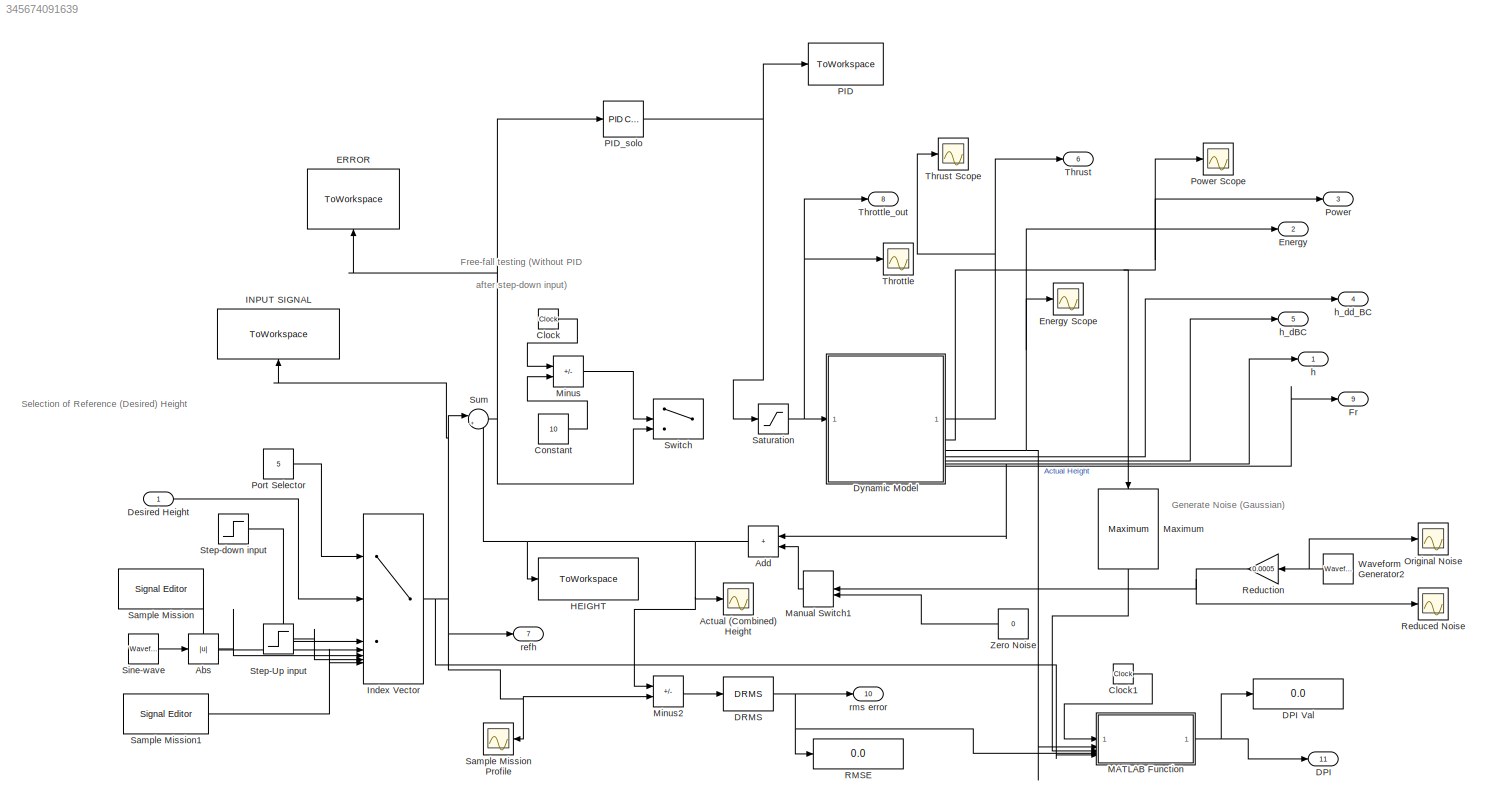
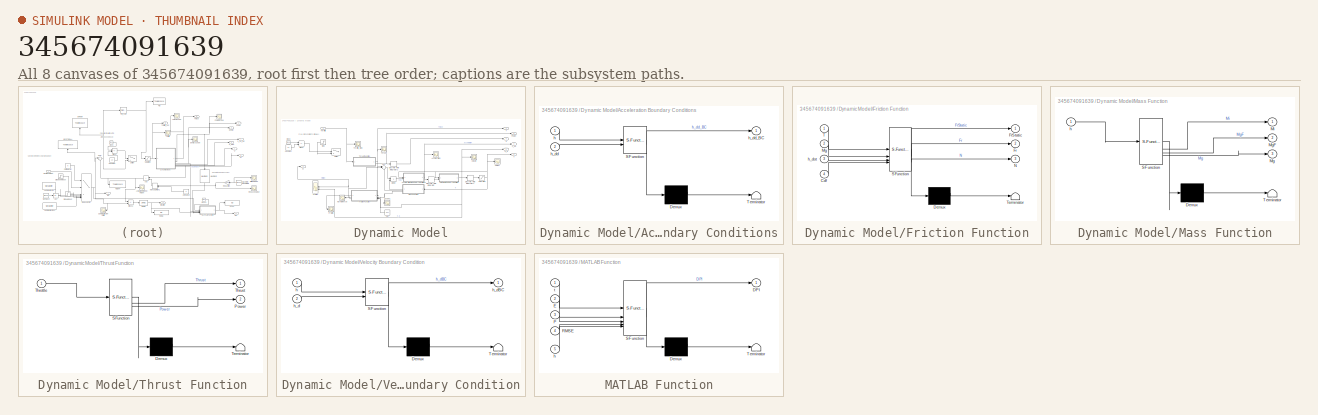
[diagram: thumbnail index - all 8 canvases of the model, root first then tree order]
MODEL slx_345674091639
KIND model
CONFIG AbsTol = auto
CONFIG EnableMultiTasking = off
CONFIG FixedStep = auto
CONFIG MaxStep = auto
CONFIG MinStep = auto
CONFIG RelTol = 1e-3
CONFIG SampleTimeConstraint = Unconstrained
CONFIG SolverName = FixedStepAuto
CONFIG StartTime = 0.0
CONFIG StopTime = 100
BLOCK [Abs] Abs
  SaturateOnIntegerOverflow = off
BLOCK [Scope] Actual (Combined) Height
  Floating = off
  NumInputPorts = 1
  ScopeSpecificationString = Simulink.scopes.TimeScopeBlockCfg('CurrentConfiguration', extmgr.ConfigurationSet(extmgr.Configuration('Core','General UI',true),extmgr.Configuration('Core','Source UI',true),extmgr.Configuration('Sources','WiredSimulink',true,'DataLoggingVariableName','ScopeData2'),extmgr.Configuration('Visuals','Time Domain',true,'SerializedDisplays',{struct('MinYLimReal','-0.13595','MaxYLimReal','1.17706','YLab...<+1451ch>
BLOCK [Sum] Add
  IconShape = rectangular
BLOCK [Clock] Clock
  DisplayTime = on
BLOCK [Clock] Clock1
  DisplayTime = on
BLOCK [Constant] Constant
  Value = 10
BLOCK [Outport] DPI
  Port = 11
BLOCK [Display] DPI Val
  Decimation = 1
BLOCK [Reference] DRMS  REF=sdolib/RMS Blocks/DRMS
  SourceBlock = sdolib/RMS Blocks/DRMS
  SourceType = Discrete RMS Value Block
BLOCK [Inport] Desired Height
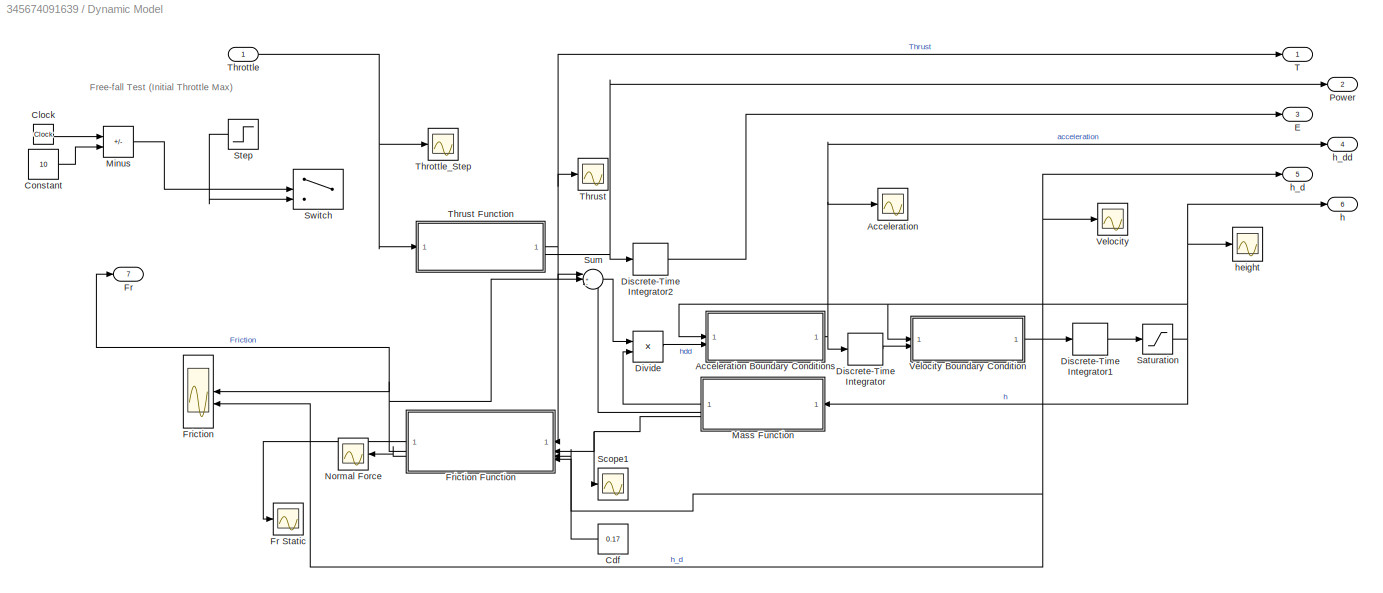
BLOCK [SubSystem] Dynamic Model
BLOCK [Scope] Dynamic Model/Acceleration
  Floating = off
  NumInputPorts = 1
  ScopeSpecificationString = Simulink.scopes.TimeScopeBlockCfg('CurrentConfiguration', extmgr.ConfigurationSet(extmgr.Configuration('Core','General UI',true),extmgr.Configuration('Core','Source UI',true),extmgr.Configuration('Sources','WiredSimulink',true,'DataLoggingVariableName','ScopeData4'),extmgr.Configuration('Visuals','Time Domain',true,'SerializedDisplays',{struct('MinYLimReal','-15.77641','MaxYLimReal','27.55756','YL...<+1495ch>
BLOCK [SubSystem] Dynamic Model/Acceleration Boundary Conditions
  ErrorFcn = Stateflow.Translate.translate
  PermitHierarchicalResolution = ExplicitOnly
  SFBlockType = MATLAB Function
  TreatAsAtomicUnit = on
BLOCK [Demux] Dynamic Model/Acceleration Boundary Conditions/ Demux 
  Outputs = 1
BLOCK [S-Function] Dynamic Model/Acceleration Boundary Conditions/ SFunction 
  EnableBusSupport = on
  FunctionName = sf_sfun
  PortCounts = [2 2]
  SFcnIsStateOwnerBlock = off
  SFunctionDeploymentMode = off
  Tag = Stateflow S-Function 4
BLOCK [Terminator] Dynamic Model/Acceleration Boundary Conditions/ Terminator 
BLOCK [Inport] Dynamic Model/Acceleration Boundary Conditions/h
BLOCK [Inport] Dynamic Model/Acceleration Boundary Conditions/h_dd
  Port = 2
BLOCK [Outport] Dynamic Model/Acceleration Boundary Conditions/h_dd_BC
BLOCK [Constant] Dynamic Model/Cdf
  Value = 0.17
BLOCK [Clock] Dynamic Model/Clock
  DisplayTime = on
BLOCK [Constant] Dynamic Model/Constant
  Value = 10
BLOCK [DiscreteIntegrator] Dynamic Model/Discrete-Time Integrator
  ICPrevOutput = DiscIntNeverNeededParam
  ICPrevScaledInput = DiscIntNeverNeededParam
  InitialConditionSetting = Auto
  SampleTime = -1
BLOCK [DiscreteIntegrator] Dynamic Model/Discrete-Time Integrator1
  ICPrevOutput = DiscIntNeverNeededParam
  ICPrevScaledInput = DiscIntNeverNeededParam
  InitialConditionSetting = Auto
  SampleTime = -1
BLOCK [DiscreteIntegrator] Dynamic Model/Discrete-Time Integrator2
  ICPrevOutput = DiscIntNeverNeededParam
  ICPrevScaledInput = DiscIntNeverNeededParam
  InitialConditionSetting = Auto
  SampleTime = -1
BLOCK [Product] Dynamic Model/Divide
  Inputs = */
BLOCK [Outport] Dynamic Model/E
  Port = 3
BLOCK [Outport] Dynamic Model/Fr
  Port = 7
BLOCK [Scope] Dynamic Model/Fr Static
  Floating = off
  NumInputPorts = 1
  ScopeSpecificationString = Simulink.scopes.TimeScopeBlockCfg('CurrentConfiguration', extmgr.ConfigurationSet(extmgr.Configuration('Core','General UI',true),extmgr.Configuration('Core','Source UI',true),extmgr.Configuration('Sources','WiredSimulink',true,'DataLoggingVariableName','ScopeData1'),extmgr.Configuration('Visuals','Time Domain',true,'SerializedDisplays',{struct('MinYLimReal','1.5506','MaxYLimReal','3.5506','YLabelR...<+1464ch>
BLOCK [Scope] Dynamic Model/Friction
  Floating = off
  NumInputPorts = 2
  ScopeSpecificationString = Simulink.scopes.TimeScopeBlockCfg('CurrentConfiguration', extmgr.ConfigurationSet(extmgr.Configuration('Core','General UI',true),extmgr.Configuration('Core','Source UI',true),extmgr.Configuration('Sources','WiredSimulink',true,'DataLoggingVariableName','ScopeData5'),extmgr.Configuration('Visuals','Time Domain',true,'SerializedDisplays',{struct('MinYLimReal','-41.6766','MaxYLimReal','41.74048','YLa...<+1493ch>
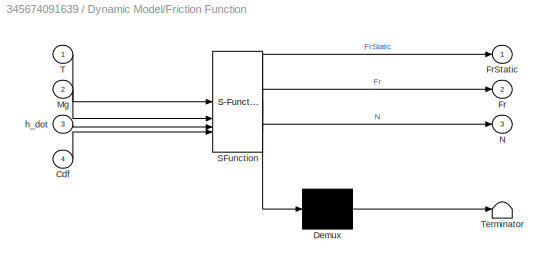
BLOCK [SubSystem] Dynamic Model/Friction Function
  ErrorFcn = Stateflow.Translate.translate
  PermitHierarchicalResolution = ExplicitOnly
  SFBlockType = MATLAB Function
  TreatAsAtomicUnit = on
BLOCK [Demux] Dynamic Model/Friction Function/ Demux 
  Outputs = 1
BLOCK [S-Function] Dynamic Model/Friction Function/ SFunction 
  EnableBusSupport = on
  FunctionName = sf_sfun
  PortCounts = [4 4]
  SFcnIsStateOwnerBlock = off
  SFunctionDeploymentMode = off
  Tag = Stateflow S-Function 3
BLOCK [Terminator] Dynamic Model/Friction Function/ Terminator 
BLOCK [Inport] Dynamic Model/Friction Function/Cdf
  Port = 4
BLOCK [Outport] Dynamic Model/Friction Function/Fr
  Port = 2
BLOCK [Outport] Dynamic Model/Friction Function/FrStatic
BLOCK [Inport] Dynamic Model/Friction Function/Mg
  Port = 2
BLOCK [Outport] Dynamic Model/Friction Function/N
  Port = 3
BLOCK [Inport] Dynamic Model/Friction Function/T
BLOCK [Inport] Dynamic Model/Friction Function/h_dot
  Port = 3
BLOCK [SubSystem] Dynamic Model/Mass Function
  ErrorFcn = Stateflow.Translate.translate
  PermitHierarchicalResolution = ExplicitOnly
  SFBlockType = MATLAB Function
  TreatAsAtomicUnit = on
BLOCK [Demux] Dynamic Model/Mass Function/ Demux 
  Outputs = 1
BLOCK [S-Function] Dynamic Model/Mass Function/ SFunction 
  EnableBusSupport = on
  FunctionName = sf_sfun
  PortCounts = [1 4]
  SFcnIsStateOwnerBlock = off
  SFunctionDeploymentMode = off
  Tag = Stateflow S-Function 1
BLOCK [Terminator] Dynamic Model/Mass Function/ Terminator 
BLOCK [Outport] Dynamic Model/Mass Function/Mg
  Port = 3
BLOCK [Outport] Dynamic Model/Mass Function/MgF
  Port = 2
BLOCK [Outport] Dynamic Model/Mass Function/Mi
BLOCK [Inport] Dynamic Model/Mass Function/h
BLOCK [Sum] Dynamic Model/Minus
  IconShape = rectangular
  Inputs = -+
BLOCK [Scope] Dynamic Model/Normal Force
  Floating = off
  NumInputPorts = 1
  ScopeSpecificationString = Simulink.scopes.TimeScopeBlockCfg('CurrentConfiguration', extmgr.ConfigurationSet(extmgr.Configuration('Core','General UI',true),extmgr.Configuration('Core','Source UI',true),extmgr.Configuration('Sources','WiredSimulink',true,'DataLoggingVariableName','ScopeData6'),extmgr.Configuration('Visuals','Time Domain',true,'SerializedDisplays',{struct('MinYLimReal','-17.04515','MaxYLimReal','220.18654','Y...<+1477ch>
BLOCK [Outport] Dynamic Model/Power
  Port = 2
BLOCK [Saturate] Dynamic Model/Saturation
  LowerLimit = 0
  UpperLimit = 1.44
BLOCK [Scope] Dynamic Model/Scope1
  Floating = off
  NumInputPorts = 1
  ScopeSpecificationString = Simulink.scopes.TimeScopeBlockCfg('CurrentConfiguration', extmgr.ConfigurationSet(extmgr.Configuration('Core','General UI',true),extmgr.Configuration('Core','Source UI',true),extmgr.Configuration('Sources','WiredSimulink',true,'DataLoggingVariableName','ScopeData5'),extmgr.Configuration('Visuals','Time Domain',true,'SerializedDisplays',{struct('MinYLimReal','1.19491','MaxYLimReal','1.38579','YLabe...<+1462ch>
BLOCK [Step] Dynamic Model/Step
  After = 0
  Before = 1
  SampleTime = 0
  Time = 10
BLOCK [Sum] Dynamic Model/Sum
  Inputs = |+--
BLOCK [Switch] Dynamic Model/Switch
  Criteria = u2 ~= 0
  InputSameDT = off
  SaturateOnIntegerOverflow = off
BLOCK [Outport] Dynamic Model/T
BLOCK [Inport] Dynamic Model/Throttle
BLOCK [Scope] Dynamic Model/Throttle_Step
  Floating = off
  NumInputPorts = 1
  ScopeSpecificationString = Simulink.scopes.TimeScopeBlockCfg('CurrentConfiguration', extmgr.ConfigurationSet(extmgr.Configuration('Core','General UI',true),extmgr.Configuration('Core','Source UI',true),extmgr.Configuration('Sources','WiredSimulink',true,'DataLoggingVariableName','ScopeData2'),extmgr.Configuration('Visuals','Time Domain',true,'SerializedDisplays',{struct('MinYLimReal','-11.25','MaxYLimReal','101.25','YLabelR...<+1477ch>
BLOCK [Scope] Dynamic Model/Thrust
  Floating = off
  NumInputPorts = 1
  ScopeSpecificationString = Simulink.scopes.TimeScopeBlockCfg('CurrentConfiguration', extmgr.ConfigurationSet(extmgr.Configuration('Core','General UI',true),extmgr.Configuration('Core','Source UI',true),extmgr.Configuration('Sources','WiredSimulink',true,'DataLoggingVariableName','ScopeData1'),extmgr.Configuration('Visuals','Time Domain',true,'SerializedDisplays',{struct('MinYLimReal','-3.20013','MaxYLimReal','28.80113','YLa...<+1458ch>
BLOCK [SubSystem] Dynamic Model/Thrust Function
  ErrorFcn = Stateflow.Translate.translate
  PermitHierarchicalResolution = ExplicitOnly
  SFBlockType = MATLAB Function
  TreatAsAtomicUnit = on
BLOCK [Demux] Dynamic Model/Thrust Function/ Demux 
  Outputs = 1
BLOCK [S-Function] Dynamic Model/Thrust Function/ SFunction 
  EnableBusSupport = on
  FunctionName = sf_sfun
  PortCounts = [1 3]
  SFcnIsStateOwnerBlock = off
  SFunctionDeploymentMode = off
  Tag = Stateflow S-Function 2
BLOCK [Terminator] Dynamic Model/Thrust Function/ Terminator 
BLOCK [Outport] Dynamic Model/Thrust Function/Power
  Port = 2
BLOCK [Inport] Dynamic Model/Thrust Function/Throttle
BLOCK [Outport] Dynamic Model/Thrust Function/Thrust
BLOCK [Scope] Dynamic Model/Velocity
  Floating = off
  NumInputPorts = 1
  ScopeSpecificationString = Simulink.scopes.TimeScopeBlockCfg('CurrentConfiguration', extmgr.ConfigurationSet(extmgr.Configuration('Core','General UI',true),extmgr.Configuration('Core','Source UI',true),extmgr.Configuration('Sources','WiredSimulink',true,'DataLoggingVariableName','ScopeData4'),extmgr.Configuration('Visuals','Time Domain',true,'SerializedDisplays',{struct('MinYLimReal','-1.26255','MaxYLimReal','1.35675','YLab...<+1451ch>
BLOCK [SubSystem] Dynamic Model/Velocity Boundary Condition
  ErrorFcn = Stateflow.Translate.translate
  PermitHierarchicalResolution = ExplicitOnly
  SFBlockType = MATLAB Function
  TreatAsAtomicUnit = on
BLOCK [Demux] Dynamic Model/Velocity Boundary Condition/ Demux 
  Outputs = 1
BLOCK [S-Function] Dynamic Model/Velocity Boundary Condition/ SFunction 
  EnableBusSupport = on
  FunctionName = sf_sfun
  PortCounts = [2 2]
  SFcnIsStateOwnerBlock = off
  SFunctionDeploymentMode = off
  Tag = Stateflow S-Function 5
BLOCK [Terminator] Dynamic Model/Velocity Boundary Condition/ Terminator 
BLOCK [Inport] Dynamic Model/Velocity Boundary Condition/h
BLOCK [Inport] Dynamic Model/Velocity Boundary Condition/h_d
  Port = 2
BLOCK [Outport] Dynamic Model/Velocity Boundary Condition/h_dBC
BLOCK [Outport] Dynamic Model/h
  Port = 6
BLOCK [Outport] Dynamic Model/h_d
  Port = 5
BLOCK [Outport] Dynamic Model/h_dd
  Port = 4
BLOCK [Scope] Dynamic Model/height
  Floating = off
  NumInputPorts = 1
  ScopeSpecificationString = Simulink.scopes.TimeScopeBlockCfg('CurrentConfiguration', extmgr.ConfigurationSet(extmgr.Configuration('Core','General UI',true),extmgr.Configuration('Core','Source UI',true),extmgr.Configuration('Sources','WiredSimulink',true),extmgr.Configuration('Visuals','Time Domain',true,'SerializedDisplays',{struct('MinYLimReal','-0.10046','MaxYLimReal','0.90418','YLabelReal','','MinYLimMag','0.00000','MaxY...<+1410ch>
BLOCK [ToWorkspace] ERROR 
  FixptAsFi = on
  MaxDataPoints = inf
  NameLocation = right
  SampleTime = 0.05
  Save2DSignal = 2-D array (concatenate along first dimension)
  SaveFormat = Structure With Time
  VariableName = e_out
BLOCK [Outport] Energy
  Port = 2
BLOCK [Scope] Energy Scope
  Floating = off
  NumInputPorts = 1
  ScopeSpecificationString = Simulink.scopes.TimeScopeBlockCfg('CurrentConfiguration', extmgr.ConfigurationSet(extmgr.Configuration('Core','General UI',true),extmgr.Configuration('Core','Source UI',true),extmgr.Configuration('Sources','WiredSimulink',true,'DataLoggingVariableName','ScopeData3'),extmgr.Configuration('Visuals','Time Domain',true,'SerializedDisplays',{struct('MinYLimReal','-4099.52108','MaxYLimReal','36895.68976...<+1499ch>
BLOCK [Outport] Fr
  Port = 9
BLOCK [ToWorkspace] HEIGHT
  FixptAsFi = on
  MaxDataPoints = inf
  SampleTime = 0.05
  Save2DSignal = 2-D array (concatenate along first dimension)
  SaveFormat = Structure With Time
  VariableName = y_out
BLOCK [ToWorkspace] INPUT SIGNAL
  FixptAsFi = on
  MaxDataPoints = inf
  NameLocation = right
  SampleTime = 0.05
  Save2DSignal = 2-D array (concatenate along first dimension)
  SaveFormat = Structure With Time
  VariableName = in_signal
BLOCK [MultiPortSwitch] Index Vector
  DataPortForDefault = Additional data port
  DiagnosticForDefault = None
  InputSameDT = off
  Inputs = 6
  SaturateOnIntegerOverflow = off
BLOCK [SubSystem] MATLAB Function
  ErrorFcn = Stateflow.Translate.translate
  PermitHierarchicalResolution = ExplicitOnly
  SFBlockType = MATLAB Function
  TreatAsAtomicUnit = on
BLOCK [Demux] MATLAB Function/ Demux 
  Outputs = 1
BLOCK [S-Function] MATLAB Function/ SFunction 
  EnableBusSupport = on
  FunctionName = sf_sfun
  PortCounts = [5 2]
  SFcnIsStateOwnerBlock = off
  SFunctionDeploymentMode = off
  Tag = Stateflow S-Function 6
BLOCK [Terminator] MATLAB Function/ Terminator 
BLOCK [Outport] MATLAB Function/DPI
BLOCK [Inport] MATLAB Function/E
  Port = 2
BLOCK [Inport] MATLAB Function/P
  Port = 3
BLOCK [Inport] MATLAB Function/RMSE
  Port = 4
BLOCK [Inport] MATLAB Function/h
  Port = 5
BLOCK [Inport] MATLAB Function/t
BLOCK [ManualSwitch] Manual Switch1
BLOCK [Reference] Maximum  REF=dspstat3/Maximum
  LibrarySourceBlock = dsphdlsupportstat/Maximum
  NameLocation = left
  SourceBlock = dspstat3/Maximum
  SourceType = Maximum
  UserDataPersistent = on
BLOCK [Sum] Minus
  IconShape = rectangular
  Inputs = -+
BLOCK [Sum] Minus2
  IconShape = rectangular
  Inputs = +-
BLOCK [Scope] Original Noise
  Floating = off
  NumInputPorts = 1
  ScopeSpecificationString = Simulink.scopes.TimeScopeBlockCfg('CurrentConfiguration', extmgr.ConfigurationSet(extmgr.Configuration('Core','General UI',true),extmgr.Configuration('Core','Source UI',true),extmgr.Configuration('Sources','WiredSimulink',true,'DataLoggingVariableName','ScopeData2'),extmgr.Configuration('Visuals','Time Domain',true,'SerializedDisplays',{struct('MinYLimReal','-13.46312','MaxYLimReal','12.59666','YL...<+1473ch>
BLOCK [ToWorkspace] PID
  FixptAsFi = on
  MaxDataPoints = inf
  SampleTime = 0.05
  Save2DSignal = 2-D array (concatenate along first dimension)
  SaveFormat = Structure With Time
  VariableName = u_out
BLOCK [Reference] PID_solo  REF=slpidlib/PID Controller
  LibrarySourceBlock = simulink/Discrete/Discrete PID Controller
  SourceBlock = slpidlib/PID Controller
  SourceType = PID 1dof
BLOCK [Constant] Port Selector
  Value = 5
BLOCK [Outport] Power
  Port = 3
BLOCK [Scope] Power Scope
  Floating = off
  NumInputPorts = 1
  ScopeSpecificationString = Simulink.scopes.TimeScopeBlockCfg('CurrentConfiguration', extmgr.ConfigurationSet(extmgr.Configuration('Core','General UI',true),extmgr.Configuration('Core','Source UI',true),extmgr.Configuration('Sources','WiredSimulink',true,'DataLoggingVariableName','ScopeData1'),extmgr.Configuration('Visuals','Time Domain',true,'SerializedDisplays',{struct('MinYLimReal','-4099.52108','MaxYLimReal','36895.68976...<+1499ch>
BLOCK [Display] RMSE
  Decimation = 1
BLOCK [Scope] Reduced Noise
  Floating = off
  NumInputPorts = 1
  ScopeSpecificationString = Simulink.scopes.TimeScopeBlockCfg('CurrentConfiguration', extmgr.ConfigurationSet(extmgr.Configuration('Core','General UI',true),extmgr.Configuration('Core','Source UI',true),extmgr.Configuration('Sources','WiredSimulink',true,'DataLoggingVariableName','ScopeData1'),extmgr.Configuration('Visuals','Time Domain',true,'SerializedDisplays',{struct('MinYLimReal','-0.00673','MaxYLimReal','0.0063','YLabe...<+1455ch>
BLOCK [Gain] Reduction
  Gain = 0.0005
BLOCK [Reference] Sample Mission  REF=SignalEditorBlockLib/Signal Editor
  SourceBlock = SignalEditorBlockLib/Signal Editor
  SourceType = SignalEditor
  UserDataPersistent = on
BLOCK [Scope] Sample Mission Profile
  Floating = off
  NumInputPorts = 1
  ScopeSpecificationString = Simulink.scopes.TimeScopeBlockCfg('CurrentConfiguration', extmgr.ConfigurationSet(extmgr.Configuration('Core','General UI',true),extmgr.Configuration('Core','Source UI',true),extmgr.Configuration('Sources','WiredSimulink',true,'DataLoggingVariableName','ScopeData3'),extmgr.Configuration('Visuals','Time Domain',true,'SerializedDisplays',{struct('MinYLimReal','-0.125','MaxYLimReal','1.125','YLabelRe...<+1448ch>
BLOCK [Reference] Sample Mission1  REF=SignalEditorBlockLib/Signal Editor
  SourceBlock = SignalEditorBlockLib/Signal Editor
  SourceType = SignalEditor
  UserDataPersistent = on
BLOCK [Saturate] Saturation
  LowerLimit = 0
  UpperLimit = 90
BLOCK [Reference] Sine-wave   REF=simulink/Sources/Waveform
Generator
  SourceBlock = simulink/Sources/Waveform\nGenerator
  SourceType = WaveformGenerator
BLOCK [Step] Step-Up input
  SampleTime = 0.05
  Time = 10
BLOCK [Step] Step-down input
  After = 0
  Before = 1.44
  SampleTime = 0.05
  Time = 10
BLOCK [Sum] Sum
  Inputs = |+-
BLOCK [Switch] Switch
  Criteria = u2 > Threshold
  InputSameDT = off
  SaturateOnIntegerOverflow = off
BLOCK [Scope] Throttle
  Floating = off
  NumInputPorts = 1
  ScopeSpecificationString = Simulink.scopes.TimeScopeBlockCfg('CurrentConfiguration', extmgr.ConfigurationSet(extmgr.Configuration('Core','General UI',true),extmgr.Configuration('Core','Source UI',true),extmgr.Configuration('Sources','WiredSimulink',true,'DataLoggingVariableName','ScopeData1'),extmgr.Configuration('Visuals','Time Domain',true,'SerializedDisplays',{struct('MinYLimReal','-11.25','MaxYLimReal','101.25','YLabelR...<+1476ch>
BLOCK [Outport] Throttle_out
  Port = 8
BLOCK [Outport] Thrust
  Port = 6
BLOCK [Scope] Thrust Scope
  Floating = off
  NumInputPorts = 1
  ScopeSpecificationString = Simulink.scopes.TimeScopeBlockCfg('CurrentConfiguration', extmgr.ConfigurationSet(extmgr.Configuration('Core','General UI',true),extmgr.Configuration('Core','Source UI',true),extmgr.Configuration('Sources','WiredSimulink',true,'DataLoggingVariableName','ScopeData2'),extmgr.Configuration('Visuals','Time Domain',true,'SerializedDisplays',{struct('MinYLimReal','-3.2845','MaxYLimReal','29.15948','YLab...<+1470ch>
BLOCK [Reference] Waveform Generator2  REF=simulink/Sources/Waveform
Generator
  SourceBlock = simulink/Sources/Waveform\nGenerator
  SourceType = WaveformGenerator
BLOCK [Constant] Zero Noise
  OutDataTypeStr = Inherit: Inherit via back propagation
  Value = 0
BLOCK [Outport] h
BLOCK [Outport] h_dBC
  Port = 5
BLOCK [Outport] h_dd_BC
  Port = 4
BLOCK [Outport] refh
  Port = 7
BLOCK [Outport] rms error
  Port = 10
ANNOTATION (root): Free-fall testing (Without PID after step-down input)
ANNOTATION (root): Generate Noise (Gaussian)
ANNOTATION (root): Selection of Reference (Desired) Height
ANNOTATION Dynamic Model: Free-fall Test (Initial Throttle Max)
LINE Abs:1 -> Index Vector:5
NET Add:1 -> Actual (Combined) Height:1, HEIGHT:1, Minus2:1, Sum:2
LINE Clock1:1 -> MATLAB Function:1
LINE Clock:1 -> Minus:1
LINE Constant:1 -> Minus:2
NET DRMS:1 -> MATLAB Function:4, RMSE:1, rms error:1
LINE Desired Height:1 -> Index Vector:2
NET Dynamic Model/Acceleration Boundary Conditions:1 -> Dynamic Model/Acceleration:1, Dynamic Model/Discrete-Time Integrator:1, Dynamic Model/h_dd:1
LINE Dynamic Model/Cdf:1 -> Dynamic Model/Friction Function:4
LINE Dynamic Model/Clock:1 -> Dynamic Model/Minus:1
LINE Dynamic Model/Constant:1 -> Dynamic Model/Minus:2
LINE Dynamic Model/Discrete-Time Integrator1:1 -> Dynamic Model/Saturation:1
LINE Dynamic Model/Discrete-Time Integrator2:1 -> Dynamic Model/E:1
LINE Dynamic Model/Discrete-Time Integrator:1 -> Dynamic Model/Velocity Boundary Condition:2
LINE Dynamic Model/Divide:1 -> Dynamic Model/Acceleration Boundary Conditions:2
LINE Dynamic Model/Friction Function:1 -> Dynamic Model/Fr Static:1
NET Dynamic Model/Friction Function:2 -> Dynamic Model/Fr:1, Dynamic Model/Friction:1, Dynamic Model/Sum:2
LINE Dynamic Model/Friction Function:3 -> Dynamic Model/Normal Force:1
LINE Dynamic Model/Mass Function:1 -> Dynamic Model/Divide:2
LINE Dynamic Model/Mass Function:2 -> Dynamic Model/Sum:3
NET Dynamic Model/Mass Function:3 -> Dynamic Model/Friction Function:2, Dynamic Model/Scope1:1
LINE Dynamic Model/Minus:1 -> Dynamic Model/Switch:2
NET Dynamic Model/Saturation:1 -> Dynamic Model/Acceleration Boundary Conditions:1, Dynamic Model/Mass Function:1, Dynamic Model/Velocity Boundary Condition:1, Dynamic Model/h:1, Dynamic Model/height:1
LINE Dynamic Model/Step:1 -> Dynamic Model/Switch:3
LINE Dynamic Model/Sum:1 -> Dynamic Model/Divide:1
NET Dynamic Model/Throttle:1 -> Dynamic Model/Throttle_Step:1, Dynamic Model/Thrust Function:1
NET Dynamic Model/Thrust Function:1 -> Dynamic Model/Friction Function:1, Dynamic Model/Sum:1, Dynamic Model/T:1, Dynamic Model/Thrust:1
NET Dynamic Model/Thrust Function:2 -> Dynamic Model/Discrete-Time Integrator2:1, Dynamic Model/Power:1
NET Dynamic Model/Velocity Boundary Condition:1 -> Dynamic Model/Discrete-Time Integrator1:1, Dynamic Model/Friction Function:3, Dynamic Model/Friction:2, Dynamic Model/Velocity:1, Dynamic Model/h_d:1
NET Dynamic Model:1 -> Thrust Scope:1, Thrust:1
NET Dynamic Model:2 -> Maximum:1, Power Scope:1, Power:1
NET Dynamic Model:3 -> Energy Scope:1, Energy:1, MATLAB Function:2
LINE Dynamic Model:4 -> h_dd_BC:1
LINE Dynamic Model:5 -> h_dBC:1
NET Dynamic Model:6 -> Add:1, h:1
LINE Dynamic Model:7 -> Fr:1
NET Index Vector:1 -> INPUT SIGNAL:1, MATLAB Function:5, Minus2:2, Sample Mission Profile:1, Sum:1, refh:1
NET MATLAB Function:1 -> DPI Val:1, DPI:1
LINE Manual Switch1:1 -> Add:2
LINE Maximum:1 -> MATLAB Function:3
LINE Minus2:1 -> DRMS:1
LINE Minus:1 -> Switch:2
NET PID_solo:1 -> PID:1, Saturation:1
LINE Port Selector:1 -> Index Vector:1
NET Reduction:1 -> Manual Switch1:1, Reduced Noise:1
LINE Sample Mission1:1 -> Index Vector:7
LINE Sample Mission:1 -> Index Vector:4
NET Saturation:1 -> Dynamic Model:1, Throttle:1, Throttle_out:1
LINE Sine-wave :1 -> Abs:1
LINE Step-Up input:1 -> Index Vector:6
LINE Step-down input:1 -> Index Vector:3
NET Sum:1 -> ERROR :1, PID_solo:1, Switch:3
NET Waveform Generator2:1 -> Original Noise:1, Reduction:1
LINE Zero Noise:1 -> Manual Switch1:2
note: NET lines group one-source signal fan-out (src -> all destinations, sorted); 1:1 wires keep LINE
CHART Dynamic Model/Mass Function states=1 transitions=1
  STATE_LABEL 'eML_blk_kernel()'
  STATE_LABEL 'SCRIPT:\nfunction [Mi, MgF, Mg] = MassFunction(h)\n\n%Given Masses in Kg\n%Mm = 0.328; %Motor Mass\n%Ma = 0.05; %Arm Mass\nMk = 0.15; %Cart Mass\n\nM_constant = Mk; %+ Mm + Ma;\n\nMc = 2*(0.095*h + 0.532); %mass of cable is function of height\n\nMg = M_constant + Mc; %gravitational load\nMi = Mg + 0.8; % gravitational + carriage + counterweight + 8 sliders\n\nMgF = Mg * 9.81;\n\n\n\n\n\n'
CHART Dynamic Model/Thrust Function states=1 transitions=1
  STATE_LABEL 'eML_blk_kernel()'
  STATE_LABEL 'SCRIPT:\nfunction [Thrust, Power]= ThrustFunction(Throttle)\n\nS_t = Throttle/100;\n\n%Throttle to Thrust\n\n% Polyfit 6th Order\n\na = 0.451880436962741;\nb = -1.486027191210204;\nc = 1.797219095509746;\nd = -0.984318732289241;\ne = 0.241341383767270;\nf = -0.007579836329288;\ng = 0.000042183273304;\n\nThrust = 2 * (1.0e+03) * (a*S_t^6 + b*S_t^5 + c*S_t^4 + d*S_t^3 + e*S_t^2 + f*S_t + g ); \n\n% Polyfit 6th Order\n\n...<+256ch>'
CHART Dynamic Model/Friction Function states=1 transitions=1
  STATE_LABEL 'eML_blk_kernel()'
  STATE_LABEL 'SCRIPT:\nfunction [FrStatic, Fr, N]= FrictionFunction(T, Mg, h_dot, Cdf)\n\n\n%% geometry *CURRENTLY PLACEHOLDER*\nl_t = 0.1; %Thrust Moment Arm\nl_cg = 0.05; %CG Moment Arm\nl_c = 0.01; %C Moment Arm\n\nFrStatic = 0.26 * 9.81;\n\nif h_dot == 0\n    N = abs((T * l_t - Mg*9.81*l_cg)/l_c);\n    Fr = -FrStatic; %static friction\n\nelse\n    N = abs((T * l_t - Mg*9.81*l_cg)/l_c); %Normal reaction force \n    Fr = sign...<+26ch>'
CHART Dynamic Model/Acceleration Boundary Conditions states=1 transitions=1
  STATE_LABEL 'eML_blk_kernel()'
  STATE_LABEL 'SCRIPT:\nfunction h_dd_BC = Accel_BC(h,h_dd)\n% Acceleration must be 0 at the top and bottom\nif (h <= 0 && h_dd < 0) || (h >= 1.44 && h_dd > 0)\n    h_dd_BC = 0;\nelse\n    h_dd_BC = h_dd;\nend\n'
CHART Dynamic Model/Velocity Boundary Condition states=1 transitions=1
  STATE_LABEL 'eML_blk_kernel()'
  STATE_LABEL 'SCRIPT:\nfunction h_dBC = Vel_BC(h, h_d)\n\nif (h==0 && h_d < 0) || (h==1.44 && h_d > 0)\n    h_dBC = 0;\nelse\n    h_dBC = h_d;\nend\n'
CHART MATLAB Function states=1 transitions=1
  STATE_LABEL 'eML_blk_kernel()'
  STATE_LABEL 'SCRIPT:\nfunction DPI = fcn(t, E, P, RMSE, h)\nDPI = 70 * (0.3 * E / (2 * P * t) + 0.4 * (RMSE/h))^(-1);\n'
CHART  states=0 transitions=0
CHART  states=0 transitions=0
CHART  states=0 transitions=0
CHART  states=0 transitions=0
CHART  states=0 transitions=0
CHART  states=0 transitions=0
